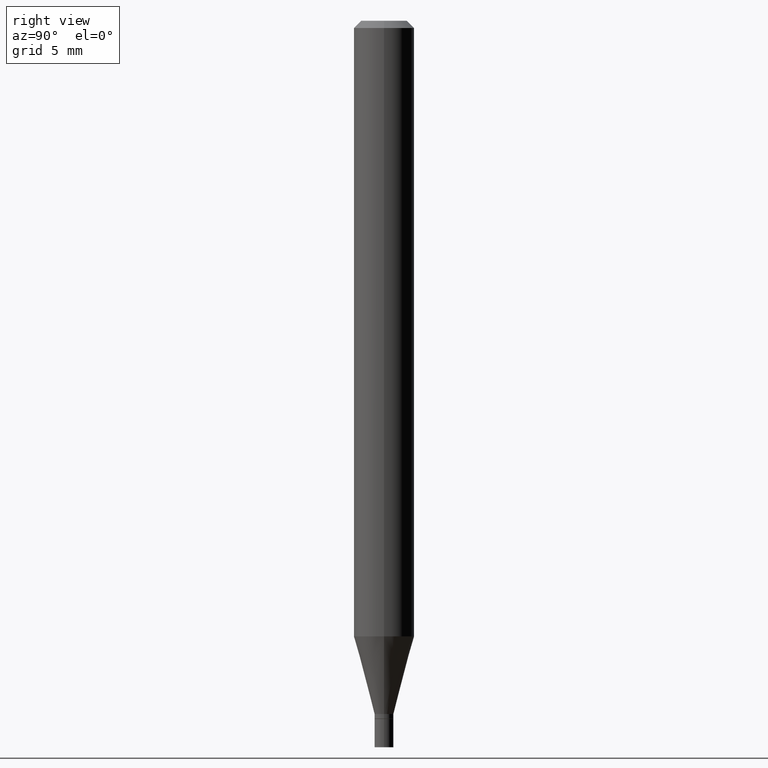
[diagram: clean part render]
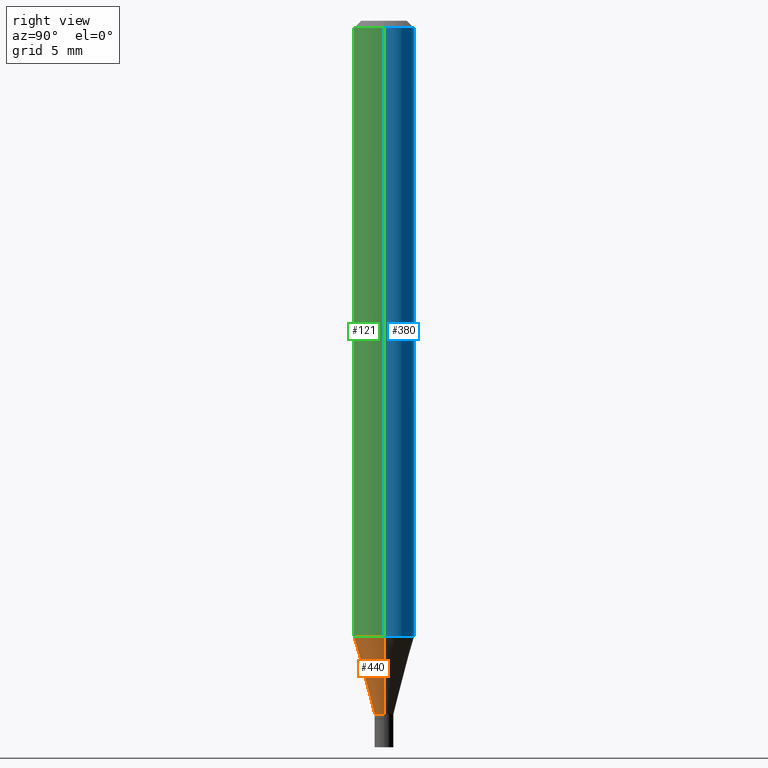
[diagram: same view with three faces highlighted in distinct colors, each labeled with its STEP entity id]
A machine part, right view with three faces highlighted in distinct colors.
Their STEP definitions:

[orange] entity #440 — the highlighted conical surface has half-angle 15 deg.
#6 = CARTESIAN_POINT ( 'NONE',  ( 3.108244201234690449E-29, -4.437748949293590216E-15, -1.271021815274538280 ) ) ;
#7 = VECTOR ( 'NONE', #207, 39.37007874015748854 ) ;
#25 = CARTESIAN_POINT ( 'NONE',  ( 0.01949999999999992017, -5.134223308768844733E-15, -1.431499999999999995 ) ) ;
#44 = LINE ( 'NONE', #194, #7 ) ;
#59 = VERTEX_POINT ( 'NONE', #104 ) ;
#64 = CARTESIAN_POINT ( 'NONE',  ( -0.01949999999999992017, -4.859499703080744245E-15, -1.431499999999999995 ) ) ;
#75 = DIRECTION ( 'NONE',  ( -2.445468806185136597E-29, 3.491481338843145583E-15, 1.000000000000000000 ) ) ;
#84 = CARTESIAN_POINT ( 'NONE',  ( 3.500688596054023043E-29, -4.998055536553962721E-15, -1.431499999999999995 ) ) ;
#95 = EDGE_CURVE ( 'NONE', #114, #332, #269, .T. ) ;
#102 = DIRECTION ( 'NONE',  ( -2.445468806185136597E-29, 3.491481338843145583E-15, 1.000000000000000000 ) ) ;
#104 = CARTESIAN_POINT ( 'NONE',  ( -0.06250000000000000000, -3.993659739443527600E-15, -1.271021815274538280 ) ) ;
#114 = VERTEX_POINT ( 'NONE', #185 ) ;
#132 = DIRECTION ( 'NONE',  ( -0.2588190451025212391, 5.211531920934549464E-15, 0.9659258262890679791 ) ) ;
#141 = AXIS2_PLACEMENT_3D ( 'NONE', #84, #75, #361 ) ;
#153 = ORIENTED_EDGE ( 'NONE', *, *, #155, .F. ) ;
#155 = EDGE_CURVE ( 'NONE', #59, #419, #244, .T. ) ;
#185 = CARTESIAN_POINT ( 'NONE',  ( -0.01949999999999992017, -4.426579721262135923E-15, -1.431499999999999995 ) ) ;
#194 = CARTESIAN_POINT ( 'NONE',  ( 0.01949999999999992017, -5.134223308768844733E-15, -1.431499999999999995 ) ) ;
#207 = DIRECTION ( 'NONE',  ( 0.2588190451025212391, 1.565188264969622362E-15, 0.9659258262890679791 ) ) ;
#230 = AXIS2_PLACEMENT_3D ( 'NONE', #317, #102, #252 ) ;
#244 = CIRCLE ( 'NONE', #416, 0.06250000000000000000 ) ;
#252 = DIRECTION ( 'NONE',  ( 1.000000000000000000, -6.982962677686287221E-15, 0.000000000000000000 ) ) ;
#260 = EDGE_CURVE ( 'NONE', #332, #419, #44, .T. ) ;
#267 = EDGE_CURVE ( 'NONE', #114, #59, #428, .T. ) ;
#269 = CIRCLE ( 'NONE', #230, 0.01949999999999992017 ) ;
#270 = EDGE_LOOP ( 'NONE', ( #375, #355, #406, #153 ) ) ;
#289 = DIRECTION ( 'NONE',  ( -2.445468806185136597E-29, 3.491481338843145583E-15, 1.000000000000000000 ) ) ;
#293 = DIRECTION ( 'NONE',  ( 1.000000000000000000, -6.982962677686262766E-15, 0.000000000000000000 ) ) ;
#317 = CARTESIAN_POINT ( 'NONE',  ( 3.500688596054023043E-29, -4.998055536553962721E-15, -1.431499999999999995 ) ) ;
#332 = VERTEX_POINT ( 'NONE', #25 ) ;
#343 = CONICAL_SURFACE ( 'NONE', #141, 0.01949999999999992017, 0.2617993877991499629 ) ;
#355 = ORIENTED_EDGE ( 'NONE', *, *, #95, .T. ) ;
#361 = DIRECTION ( 'NONE',  ( 1.000000000000000000, -6.982962677686287221E-15, 0.000000000000000000 ) ) ;
#375 = ORIENTED_EDGE ( 'NONE', *, *, #267, .F. ) ;
#406 = ORIENTED_EDGE ( 'NONE', *, *, #260, .T. ) ;
#416 = AXIS2_PLACEMENT_3D ( 'NONE', #6, #289, #293 ) ;
#419 = VERTEX_POINT ( 'NONE', #421 ) ;
#421 = CARTESIAN_POINT ( 'NONE',  ( 0.06250000000000000000, -4.874184116648982674E-15, -1.271021815274538280 ) ) ;
#425 = FACE_OUTER_BOUND ( 'NONE', #270, .T. ) ;
#428 = LINE ( 'NONE', #64, #465 ) ;
#440 = ADVANCED_FACE ( 'NONE', ( #425 ), #343, .T. ) ;
#465 = VECTOR ( 'NONE', #132, 39.37007874015748854 ) ;

[blue] entity #380 — the highlighted cylindrical surface (edge-blend (fillet) strip) has radius 1.5875 mm, axis along (-0, 0, 1).
#5 = DIRECTION ( 'NONE',  ( -2.445468806185136877E-29, 3.491481338843145188E-15, 1.000000000000000000 ) ) ;
#13 = FACE_OUTER_BOUND ( 'NONE', #128, .T. ) ;
#16 = ORIENTED_EDGE ( 'NONE', *, *, #23, .F. ) ;
#23 = EDGE_CURVE ( 'NONE', #419, #407, #139, .T. ) ;
#26 = CIRCLE ( 'NONE', #203, 0.06250000000000000000 ) ;
#42 = LINE ( 'NONE', #431, #169 ) ;
#59 = VERTEX_POINT ( 'NONE', #104 ) ;
#69 = DIRECTION ( 'NONE',  ( -2.445468806185136877E-29, 3.491481338843145188E-15, 1.000000000000000000 ) ) ;
#104 = CARTESIAN_POINT ( 'NONE',  ( -0.06250000000000000000, -3.993659739443527600E-15, -1.271021815274538280 ) ) ;
#106 = EDGE_CURVE ( 'NONE', #419, #59, #193, .T. ) ;
#122 = CYLINDRICAL_SURFACE ( 'NONE', #257, 0.06250000000000000000 ) ;
#128 = EDGE_LOOP ( 'NONE', ( #308, #213, #277, #16 ) ) ;
#139 = LINE ( 'NONE', #417, #157 ) ;
#147 = CARTESIAN_POINT ( 'NONE',  ( 0.06250000000000000000, -4.888073874380388472E-16, -0.01499999999999999944 ) ) ;
#157 = VECTOR ( 'NONE', #69, 39.37007874015748143 ) ;
#164 = DIRECTION ( 'NONE',  ( -2.445468806185136597E-29, 3.491481338843145583E-15, 1.000000000000000000 ) ) ;
#169 = VECTOR ( 'NONE', #5, 39.37007874015748143 ) ;
#178 = CARTESIAN_POINT ( 'NONE',  ( 3.108244201234690449E-29, -4.437748949293590216E-15, -1.271021815274538280 ) ) ;
#193 = CIRCLE ( 'NONE', #249, 0.06250000000000000000 ) ;
#203 = AXIS2_PLACEMENT_3D ( 'NONE', #214, #455, #385 ) ;
#206 = CARTESIAN_POINT ( 'NONE',  ( -0.06250000000000000000, -1.800971374838056229E-15, -0.01499999999999999944 ) ) ;
#213 = ORIENTED_EDGE ( 'NONE', *, *, #429, .T. ) ;
#214 = CARTESIAN_POINT ( 'NONE',  ( 3.668203209277705088E-31, -5.237222008264718399E-17, -0.01499999999999999944 ) ) ;
#245 = DIRECTION ( 'NONE',  ( 1.000000000000000000, -6.982962677686262766E-15, 0.000000000000000000 ) ) ;
#249 = AXIS2_PLACEMENT_3D ( 'NONE', #178, #287, #245 ) ;
#257 = AXIS2_PLACEMENT_3D ( 'NONE', #264, #164, #371 ) ;
#264 = CARTESIAN_POINT ( 'NONE',  ( 0.000000000000000000, 0.000000000000000000, 0.000000000000000000 ) ) ;
#277 = ORIENTED_EDGE ( 'NONE', *, *, #286, .F. ) ;
#286 = EDGE_CURVE ( 'NONE', #407, #339, #26, .T. ) ;
#287 = DIRECTION ( 'NONE',  ( -2.445468806185136597E-29, 3.491481338843145583E-15, 1.000000000000000000 ) ) ;
#308 = ORIENTED_EDGE ( 'NONE', *, *, #106, .T. ) ;
#339 = VERTEX_POINT ( 'NONE', #206 ) ;
#371 = DIRECTION ( 'NONE',  ( 1.000000000000000000, -6.982962677686266711E-15, 4.876176775795935793E-29 ) ) ;
#380 = ADVANCED_FACE ( 'NONE', ( #13 ), #122, .T. ) ;
#385 = DIRECTION ( 'NONE',  ( 1.000000000000000000, -6.982962677686266711E-15, 0.000000000000000000 ) ) ;
#407 = VERTEX_POINT ( 'NONE', #147 ) ;
#417 = CARTESIAN_POINT ( 'NONE',  ( 0.06250000000000000000, -4.364351673553916694E-16, 3.047610484872459871E-30 ) ) ;
#419 = VERTEX_POINT ( 'NONE', #421 ) ;
#421 = CARTESIAN_POINT ( 'NONE',  ( 0.06250000000000000000, -4.874184116648982674E-15, -1.271021815274538280 ) ) ;
#429 = EDGE_CURVE ( 'NONE', #59, #339, #42, .T. ) ;
#431 = CARTESIAN_POINT ( 'NONE',  ( -0.06250000000000000000, 4.440892098500626162E-16, -3.074334431409316114E-30 ) ) ;
#455 = DIRECTION ( 'NONE',  ( -2.445468806185136597E-29, 3.491481338843145583E-15, 1.000000000000000000 ) ) ;

[green] entity #121 — the highlighted cylindrical surface (edge-blend (fillet) strip) has radius 1.5875 mm, axis along (-0, 0, 1).
#4 = DIRECTION ( 'NONE',  ( -2.445468806185136597E-29, 3.491481338843145583E-15, 1.000000000000000000 ) ) ;
#5 = DIRECTION ( 'NONE',  ( -2.445468806185136877E-29, 3.491481338843145188E-15, 1.000000000000000000 ) ) ;
#6 = CARTESIAN_POINT ( 'NONE',  ( 3.108244201234690449E-29, -4.437748949293590216E-15, -1.271021815274538280 ) ) ;
#9 = EDGE_LOOP ( 'NONE', ( #125, #135, #76, #274 ) ) ;
#23 = EDGE_CURVE ( 'NONE', #419, #407, #139, .T. ) ;
#29 = DIRECTION ( 'NONE',  ( 1.000000000000000000, -6.982962677686266711E-15, 4.876176775795935793E-29 ) ) ;
#32 = CIRCLE ( 'NONE', #366, 0.06250000000000000000 ) ;
#42 = LINE ( 'NONE', #431, #169 ) ;
#59 = VERTEX_POINT ( 'NONE', #104 ) ;
#67 = FACE_OUTER_BOUND ( 'NONE', #9, .T. ) ;
#69 = DIRECTION ( 'NONE',  ( -2.445468806185136877E-29, 3.491481338843145188E-15, 1.000000000000000000 ) ) ;
#76 = ORIENTED_EDGE ( 'NONE', *, *, #23, .T. ) ;
#78 = DIRECTION ( 'NONE',  ( 1.000000000000000000, -6.982962677686266711E-15, 0.000000000000000000 ) ) ;
#104 = CARTESIAN_POINT ( 'NONE',  ( -0.06250000000000000000, -3.993659739443527600E-15, -1.271021815274538280 ) ) ;
#109 = CYLINDRICAL_SURFACE ( 'NONE', #443, 0.06250000000000000000 ) ;
#121 = ADVANCED_FACE ( 'NONE', ( #67 ), #109, .T. ) ;
#125 = ORIENTED_EDGE ( 'NONE', *, *, #429, .F. ) ;
#135 = ORIENTED_EDGE ( 'NONE', *, *, #155, .T. ) ;
#139 = LINE ( 'NONE', #417, #157 ) ;
#147 = CARTESIAN_POINT ( 'NONE',  ( 0.06250000000000000000, -4.888073874380388472E-16, -0.01499999999999999944 ) ) ;
#155 = EDGE_CURVE ( 'NONE', #59, #419, #244, .T. ) ;
#157 = VECTOR ( 'NONE', #69, 39.37007874015748143 ) ;
#169 = VECTOR ( 'NONE', #5, 39.37007874015748143 ) ;
#206 = CARTESIAN_POINT ( 'NONE',  ( -0.06250000000000000000, -1.800971374838056229E-15, -0.01499999999999999944 ) ) ;
#217 = EDGE_CURVE ( 'NONE', #339, #407, #32, .T. ) ;
#244 = CIRCLE ( 'NONE', #416, 0.06250000000000000000 ) ;
#254 = CARTESIAN_POINT ( 'NONE',  ( 0.000000000000000000, 0.000000000000000000, 0.000000000000000000 ) ) ;
#274 = ORIENTED_EDGE ( 'NONE', *, *, #217, .F. ) ;
#289 = DIRECTION ( 'NONE',  ( -2.445468806185136597E-29, 3.491481338843145583E-15, 1.000000000000000000 ) ) ;
#293 = DIRECTION ( 'NONE',  ( 1.000000000000000000, -6.982962677686262766E-15, 0.000000000000000000 ) ) ;
#306 = CARTESIAN_POINT ( 'NONE',  ( 3.668203209277705088E-31, -5.237222008264718399E-17, -0.01499999999999999944 ) ) ;
#339 = VERTEX_POINT ( 'NONE', #206 ) ;
#354 = DIRECTION ( 'NONE',  ( -2.445468806185136597E-29, 3.491481338843145583E-15, 1.000000000000000000 ) ) ;
#366 = AXIS2_PLACEMENT_3D ( 'NONE', #306, #4, #78 ) ;
#407 = VERTEX_POINT ( 'NONE', #147 ) ;
#416 = AXIS2_PLACEMENT_3D ( 'NONE', #6, #289, #293 ) ;
#417 = CARTESIAN_POINT ( 'NONE',  ( 0.06250000000000000000, -4.364351673553916694E-16, 3.047610484872459871E-30 ) ) ;
#419 = VERTEX_POINT ( 'NONE', #421 ) ;
#421 = CARTESIAN_POINT ( 'NONE',  ( 0.06250000000000000000, -4.874184116648982674E-15, -1.271021815274538280 ) ) ;
#429 = EDGE_CURVE ( 'NONE', #59, #339, #42, .T. ) ;
#431 = CARTESIAN_POINT ( 'NONE',  ( -0.06250000000000000000, 4.440892098500626162E-16, -3.074334431409316114E-30 ) ) ;
#443 = AXIS2_PLACEMENT_3D ( 'NONE', #254, #354, #29 ) ;